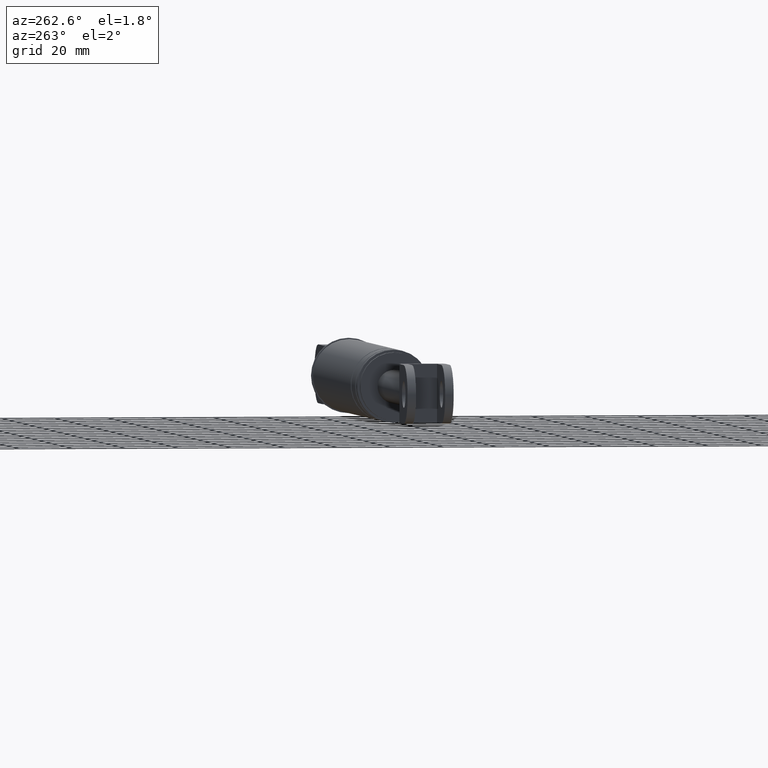
[diagram: clean part render]
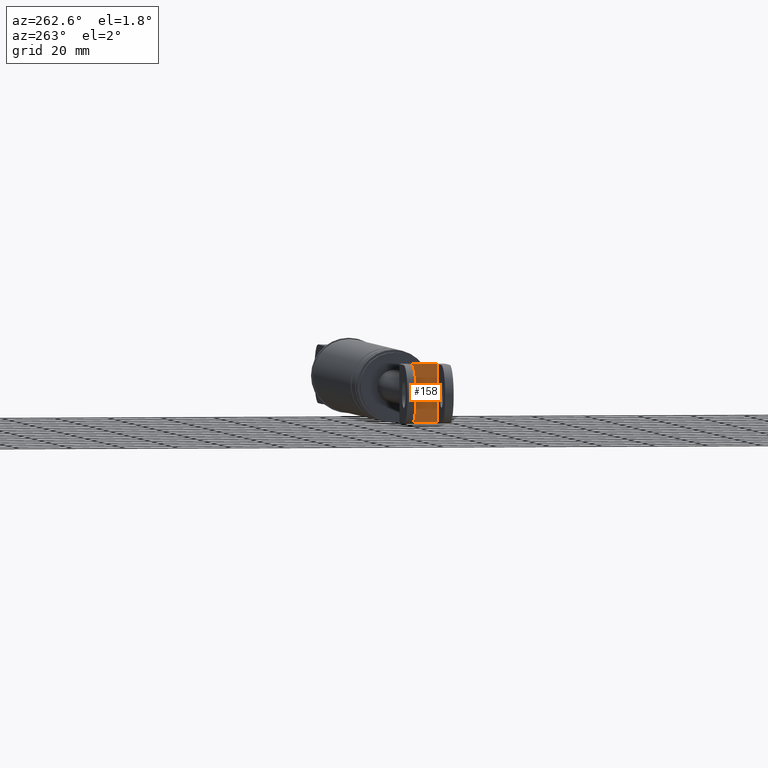
[diagram: same view with one face highlighted and labeled with its STEP entity id]
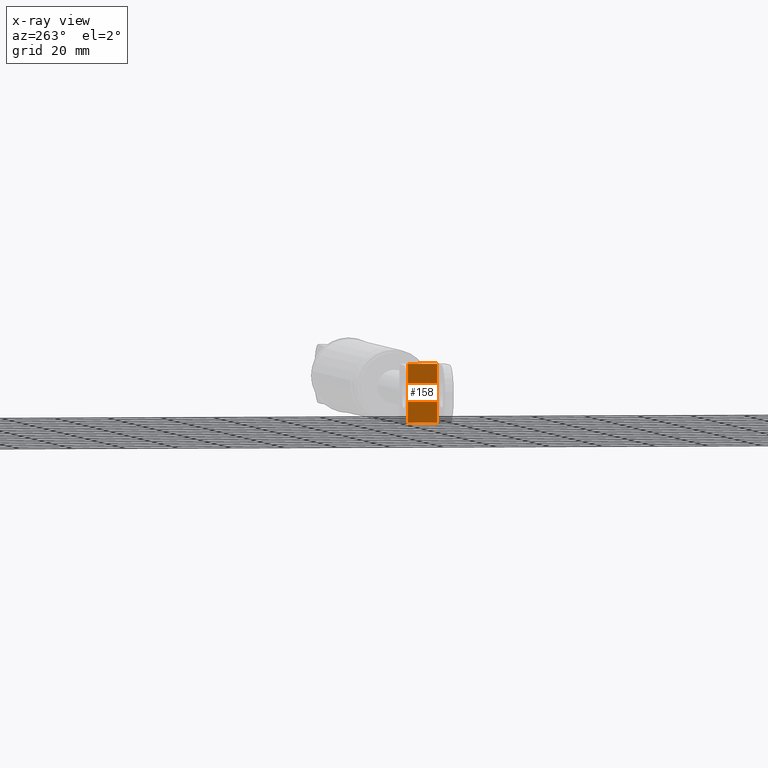
[diagram: x-ray of the same camera — body ghosted, the highlighted face saturated]
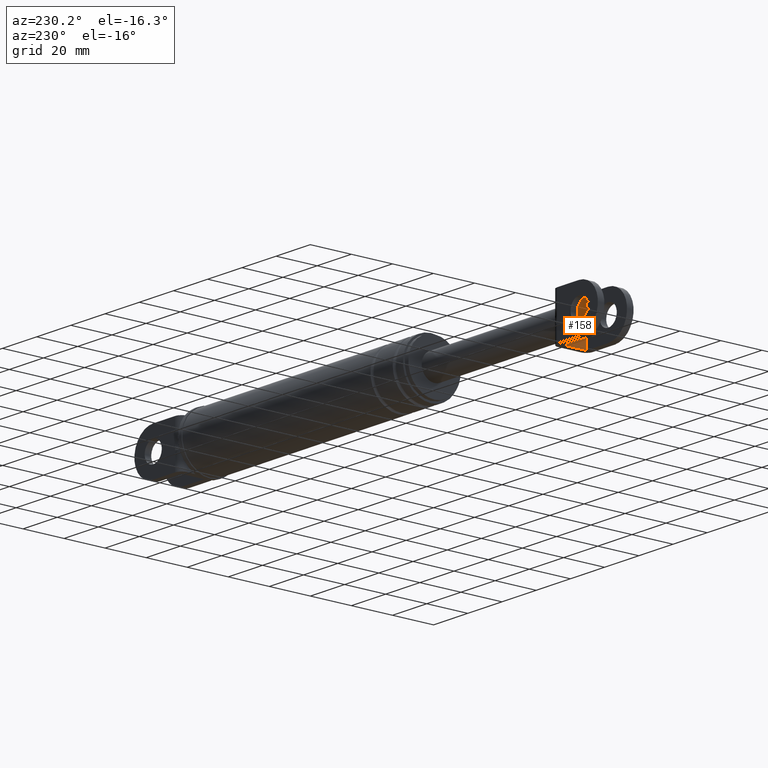
[diagram: same view with one face highlighted and labeled with its STEP entity id]
A machine part, auxiliary view. The second image highlights one B-rep face of the part: STEP entity #158.
The next image is the same camera in x-ray: the body ghosted, the highlighted face saturated — about 0% of this face is hidden behind the body in this view.
A second angle (auxiliary view) of the same face is appended — the face is thin or edge-on in the first view.
In plain terms, the highlighted planar face has unit normal (1, 0, 0).
Its self-contained STEP definition (entity closure, byte-faithful):
#158=ADVANCED_FACE('',(#644),#643,.F.);
#643=PLANE('',#1260);
#644=FACE_OUTER_BOUND('',#1261,.T.);
#1257=CARTESIAN_POINT('',(1.01246945787E+002,-6.60000000000E+000,1.83929320502E+002));
#1258=DIRECTION('',(1.00000000000E+000,0.00000000000E+000,0.00000000000E+000));
#1259=DIRECTION('',(0.00000000000E+000,0.00000000000E+000,-1.00000000000E+000));
#1260=AXIS2_PLACEMENT_3D('',#1257,#1258,#1259);
#1261=EDGE_LOOP('',(#1616,#1617,#1618,#1619));
#1616=ORIENTED_EDGE('',*,*,#1811,.T.);
#1617=ORIENTED_EDGE('',*,*,#1836,.F.);
#1618=ORIENTED_EDGE('',*,*,#1831,.F.);
#1619=ORIENTED_EDGE('',*,*,#1820,.T.);
#1811=EDGE_CURVE('',#2604,#2597,#2605,.T.);
#1820=EDGE_CURVE('',#2651,#2604,#2664,.T.);
#1831=EDGE_CURVE('',#2651,#2738,#2739,.T.);
#1836=EDGE_CURVE('',#2738,#2597,#2772,.T.);
#2597=VERTEX_POINT('',#3415);
#2604=VERTEX_POINT('',#3419);
#2605=LINE('',#3420,#3421);
#2651=VERTEX_POINT('',#3447);
#2664=LINE('',#3455,#3456);
#2738=VERTEX_POINT('',#3501);
#2739=LINE('',#3502,#3503);
#2772=LINE('',#3521,#3522);
#3415=CARTESIAN_POINT('',(1.01246945787E+002,5.50000000000E+000,1.81729320502E+002));
#3419=CARTESIAN_POINT('',(1.01246945787E+002,-5.50000000000E+000,1.81729320502E+002));
#3420=CARTESIAN_POINT('',(1.01246945787E+002,-5.50000000000E+000,1.81729320502E+002));
#3421=VECTOR('',#3422,1.10000000000E+001);
#3422=DIRECTION('',(0.00000000000E+000,1.00000000000E+000,0.00000000000E+000));
#3447=CARTESIAN_POINT('',(1.01246945787E+002,-5.50000000000E+000,1.59729320502E+002));
#3455=CARTESIAN_POINT('',(1.01246945787E+002,-5.50000000000E+000,1.59729320502E+002));
#3456=VECTOR('',#3457,2.20000000000E+001);
#3457=DIRECTION('',(0.00000000000E+000,0.00000000000E+000,1.00000000000E+000));
#3501=CARTESIAN_POINT('',(1.01246945787E+002,5.50000000000E+000,1.59729320502E+002));
#3502=CARTESIAN_POINT('',(1.01246945787E+002,-5.50000000000E+000,1.59729320502E+002));
#3503=VECTOR('',#3504,1.10000000000E+001);
#3504=DIRECTION('',(0.00000000000E+000,1.00000000000E+000,0.00000000000E+000));
#3521=CARTESIAN_POINT('',(1.01246945787E+002,5.50000000000E+000,1.59729320502E+002));
#3522=VECTOR('',#3523,2.20000000000E+001);
#3523=DIRECTION('',(0.00000000000E+000,0.00000000000E+000,1.00000000000E+000));